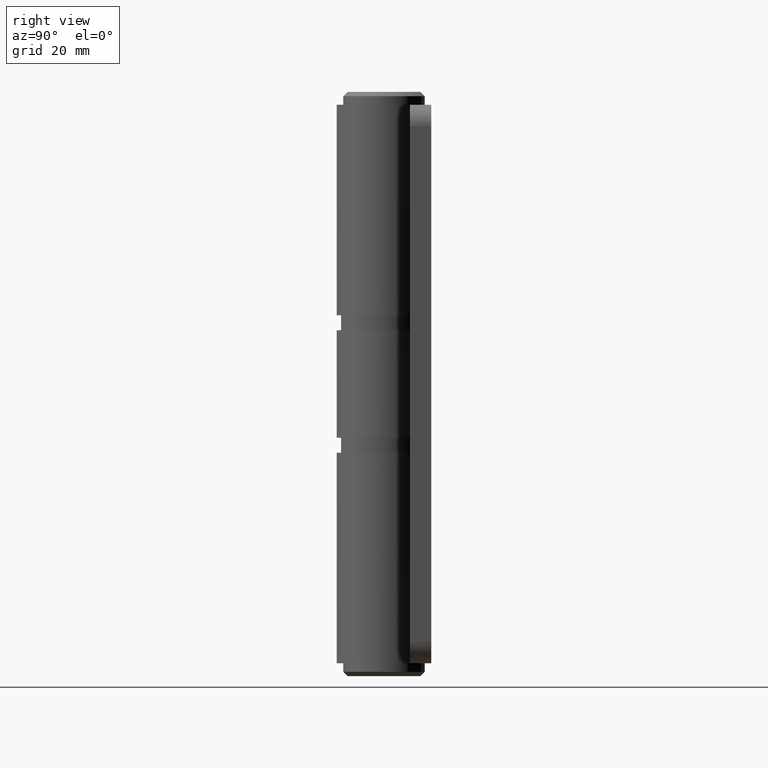
[diagram: clean part render]
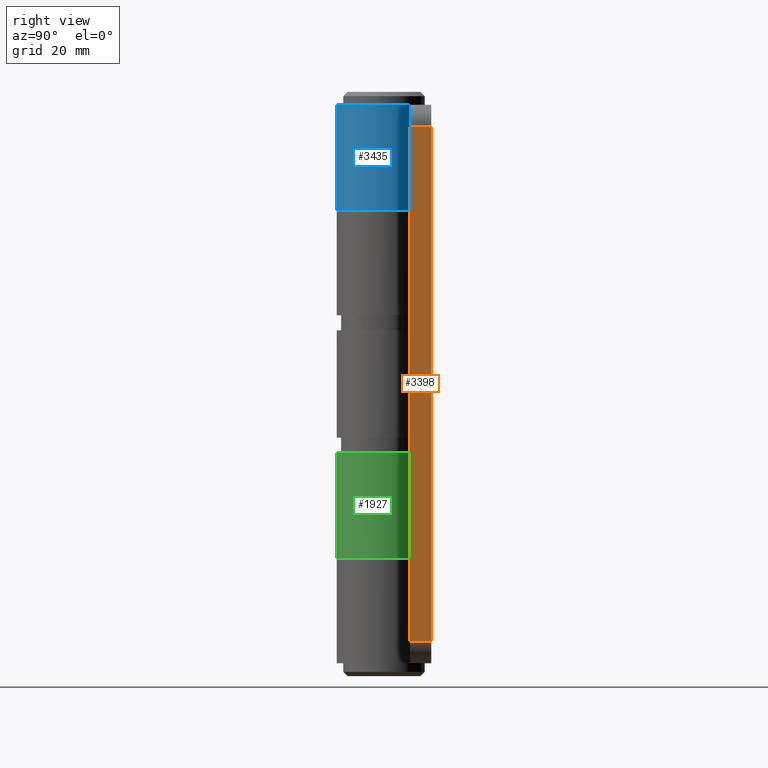
[diagram: same view with three faces highlighted in distinct colors, each labeled with its STEP entity id]
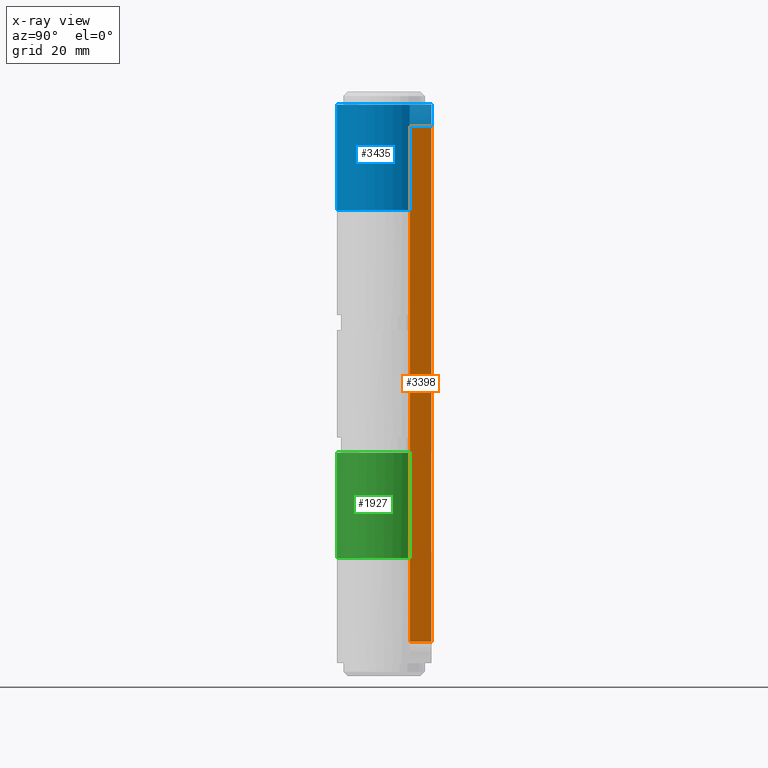
[diagram: x-ray of the same camera — body ghosted, the three highlighted faces saturated]
A machine part, right view with three faces highlighted in distinct colors.
The next image is the same camera in x-ray (body ghosted, the three faces saturated) — at least one of them is partly hidden behind the body in this view.
Their STEP definitions:

[orange] entity #3398 — the highlighted face is a freeform B-spline surface patch.
#3078=CARTESIAN_POINT('',(50.0,11.0,5.0));
#3079=VERTEX_POINT('',#3078);
#3095=CARTESIAN_POINT('',(50.0,6.0,5.0));
#3096=VERTEX_POINT('',#3095);
#3097=CARTESIAN_POINT('',(50.0,6.0,5.0));
#3098=CARTESIAN_POINT('',(50.0,11.0,5.0));
#3099=QUASI_UNIFORM_CURVE('',1,(#3097,#3098),.UNSPECIFIED.,.F.,.U.);
#3100=EDGE_CURVE('',#3096,#3079,#3099,.T.);
#3141=CARTESIAN_POINT('',(50.0,11.0,125.0));
#3142=VERTEX_POINT('',#3141);
#3163=CARTESIAN_POINT('',(50.0,6.0,125.0));
#3164=VERTEX_POINT('',#3163);
#3178=CARTESIAN_POINT('',(50.0,11.0,125.0));
#3179=CARTESIAN_POINT('',(50.0,6.0,125.0));
#3180=QUASI_UNIFORM_CURVE('',1,(#3178,#3179),.UNSPECIFIED.,.F.,.U.);
#3181=EDGE_CURVE('',#3142,#3164,#3180,.T.);
#3379=CARTESIAN_POINT('',(50.0,5.750250009690969,130.993999767416710));
#3380=CARTESIAN_POINT('',(50.0,5.750250009690969,-0.994002986067532));
#3381=CARTESIAN_POINT('',(50.0,11.249750124419480,130.993999767416710));
#3382=CARTESIAN_POINT('',(50.0,11.249750124419480,-0.994002986067532));
#3383=B_SPLINE_SURFACE_WITH_KNOTS('',1,1,((#3379,#3381),(#3380,#3382)),.UNSPECIFIED.,.F.,.F.,.U.,(2,2),(2,2),(0.0,131.988002753484300),(0.0,5.499500114728511),.UNSPECIFIED.);
#3384=CARTESIAN_POINT('',(50.0,6.0,125.0));
#3385=CARTESIAN_POINT('',(50.0,6.0,5.0));
#3386=QUASI_UNIFORM_CURVE('',1,(#3384,#3385),.UNSPECIFIED.,.F.,.U.);
#3387=EDGE_CURVE('',#3164,#3096,#3386,.T.);
#3388=ORIENTED_EDGE('',*,*,#3387,.T.);
#3389=ORIENTED_EDGE('',*,*,#3100,.T.);
#3390=CARTESIAN_POINT('',(50.0,11.0,125.0));
#3391=CARTESIAN_POINT('',(50.0,11.0,5.0));
#3392=QUASI_UNIFORM_CURVE('',1,(#3390,#3391),.UNSPECIFIED.,.F.,.U.);
#3393=EDGE_CURVE('',#3142,#3079,#3392,.T.);
#3394=ORIENTED_EDGE('',*,*,#3393,.F.);
#3395=ORIENTED_EDGE('',*,*,#3181,.T.);
#3396=EDGE_LOOP('',(#3388,#3389,#3394,#3395));
#3397=FACE_OUTER_BOUND('',#3396,.T.);
#3398=ADVANCED_FACE('',(#3397),#3383,.T.);

[blue] entity #3435 — the highlighted face is a freeform B-spline surface patch.
#2307=CARTESIAN_POINT('',(9.251891698458209,5.950000000000000,105.500000000000000));
#2308=VERTEX_POINT('',#2307);
#2314=CARTESIAN_POINT('',(0.0,11.0,105.500000000000000));
#2315=VERTEX_POINT('',#2314);
#2316=CARTESIAN_POINT('',(9.251891698458211,5.950000000000002,105.500000000000000));
#2317=CARTESIAN_POINT('',(13.874373314679708,-1.237680553175686,105.500000000000010));
#2318=CARTESIAN_POINT('',(8.052632441574287,-7.493671380632148,105.500000000000000));
#2319=CARTESIAN_POINT('',(2.230891568468870,-13.749662208088605,105.500000000000010));
#2320=CARTESIAN_POINT('',(-5.270199237220531,-9.655309420210214,105.500000000000000));
#2321=CARTESIAN_POINT('',(-12.771290042909945,-5.560956632331815,105.500000000000010));
#2322=CARTESIAN_POINT('',(-10.658527187710140,2.719521683834099,105.500000000000000));
#2323=CARTESIAN_POINT('',(-8.545764332510327,11.0,105.500000000000010));
#2324=CARTESIAN_POINT('',(0.0,11.0,105.500000000000000));
#2332=(BOUNDED_CURVE()B_SPLINE_CURVE(2,(#2316,#2317,#2318,#2319,#2320,#2321,#2322,#2323,#2324),.UNSPECIFIED.,.F.,.U.)B_SPLINE_CURVE_WITH_KNOTS((3,2,2,2,3),(0.0,0.250000000000000,0.500000000000000,0.750000000000000,1.0),.UNSPECIFIED.)CURVE()GEOMETRIC_REPRESENTATION_ITEM()RATIONAL_B_SPLINE_CURVE((1.0,0.789692738976660,1.0,0.789692738976660,1.0,0.789692738976660,1.0,0.789692738976660,1.0))REPRESENTATION_ITEM(''));
#2333=EDGE_CURVE('',#2308,#2315,#2332,.T.);
#3269=CARTESIAN_POINT('',(0.0,11.0,130.0));
#3270=VERTEX_POINT('',#3269);
#3276=CARTESIAN_POINT('',(9.251891698458209,5.950000000000000,130.0));
#3277=VERTEX_POINT('',#3276);
#3278=CARTESIAN_POINT('',(9.251891698458211,5.950000000000002,130.0));
#3279=CARTESIAN_POINT('',(13.874373314679708,-1.237680553175686,130.0));
#3280=CARTESIAN_POINT('',(8.052632441574287,-7.493671380632148,130.0));
#3281=CARTESIAN_POINT('',(2.230891568468870,-13.749662208088605,130.0));
#3282=CARTESIAN_POINT('',(-5.270199237220531,-9.655309420210214,130.0));
#3283=CARTESIAN_POINT('',(-12.771290042909945,-5.560956632331815,130.0));
#3284=CARTESIAN_POINT('',(-10.658527187710140,2.719521683834099,130.0));
#3285=CARTESIAN_POINT('',(-8.545764332510327,11.0,130.0));
#3286=CARTESIAN_POINT('',(0.0,11.0,130.0));
#3294=(BOUNDED_CURVE()B_SPLINE_CURVE(2,(#3278,#3279,#3280,#3281,#3282,#3283,#3284,#3285,#3286),.UNSPECIFIED.,.F.,.U.)B_SPLINE_CURVE_WITH_KNOTS((3,2,2,2,3),(0.0,0.250000000000000,0.500000000000000,0.750000000000000,1.0),.UNSPECIFIED.)CURVE()GEOMETRIC_REPRESENTATION_ITEM()RATIONAL_B_SPLINE_CURVE((1.0,0.789692738976660,1.0,0.789692738976660,1.0,0.789692738976660,1.0,0.789692738976660,1.0))REPRESENTATION_ITEM(''));
#3295=EDGE_CURVE('',#3277,#3270,#3294,.T.);
#3399=CARTESIAN_POINT('',(0.336778339058821,10.994843352696790,130.612500000000010));
#3400=CARTESIAN_POINT('',(0.336778339058821,10.994843352696790,104.872187500000000));
#3401=CARTESIAN_POINT('',(-13.485634154904789,11.418231751437471,130.612500000000010));
#3402=CARTESIAN_POINT('',(-13.485634154904789,11.418231751437471,104.872187499999980));
#3403=CARTESIAN_POINT('',(-10.788804872322141,-2.145154872487774,130.612500000000010));
#3404=CARTESIAN_POINT('',(-10.788804872322141,-2.145154872487774,104.872187500000000));
#3405=CARTESIAN_POINT('',(-8.091975589739485,-15.708541496413019,130.612500000000010));
#3406=CARTESIAN_POINT('',(-8.091975589739485,-15.708541496413019,104.872187499999980));
#3407=CARTESIAN_POINT('',(4.517127723219371,-10.029733652102779,130.612500000000010));
#3408=CARTESIAN_POINT('',(4.517127723219371,-10.029733652102779,104.872187500000000));
#3409=CARTESIAN_POINT('',(17.126231036178226,-4.350925807792535,130.612500000000010));
#3410=CARTESIAN_POINT('',(17.126231036178226,-4.350925807792535,104.872187499999980));
#3411=CARTESIAN_POINT('',(8.756539584433936,6.657553192145108,130.612500000000010));
#3412=CARTESIAN_POINT('',(8.756539584433936,6.657553192145108,104.872187500000000));
#3420=(BOUNDED_SURFACE()B_SPLINE_SURFACE(1,2,((#3399,#3401,#3403,#3405,#3407,#3409,#3411),(#3400,#3402,#3404,#3406,#3408,#3410,#3412)),.UNSPECIFIED.,.F.,.F.,.U.)B_SPLINE_SURFACE_WITH_KNOTS((2,2),(3,2,2,3),(0.0,25.740312500000030),(0.0,21.223080595973101,42.446161191946203,63.669241787919297),.UNSPECIFIED.)GEOMETRIC_REPRESENTATION_ITEM()RATIONAL_B_SPLINE_SURFACE(((1.0,0.622514636637620,1.0,0.622514636637620,1.0,0.622514636637620,1.0),(1.0,0.622514636637620,1.0,0.622514636637620,1.0,0.622514636637620,1.0)))REPRESENTATION_ITEM('')SURFACE());
#3421=CARTESIAN_POINT('',(0.0,11.0,130.0));
#3422=CARTESIAN_POINT('',(0.0,11.0,105.500000000000000));
#3423=QUASI_UNIFORM_CURVE('',1,(#3421,#3422),.UNSPECIFIED.,.F.,.U.);
#3424=EDGE_CURVE('',#3270,#2315,#3423,.T.);
#3425=ORIENTED_EDGE('',*,*,#3424,.T.);
#3426=ORIENTED_EDGE('',*,*,#2333,.F.);
#3427=CARTESIAN_POINT('',(9.251891698458209,5.950000000000000,130.0));
#3428=CARTESIAN_POINT('',(9.251891698458209,5.950000000000000,105.500000000000000));
#3429=QUASI_UNIFORM_CURVE('',1,(#3427,#3428),.UNSPECIFIED.,.F.,.U.);
#3430=EDGE_CURVE('',#3277,#2308,#3429,.T.);
#3431=ORIENTED_EDGE('',*,*,#3430,.F.);
#3432=ORIENTED_EDGE('',*,*,#3295,.T.);
#3433=EDGE_LOOP('',(#3425,#3426,#3431,#3432));
#3434=FACE_OUTER_BOUND('',#3433,.T.);
#3435=ADVANCED_FACE('',(#3434),#3420,.T.);

[green] entity #1927 — the highlighted face is a freeform B-spline surface patch.
#1682=CARTESIAN_POINT('',(-9.251891698458209,5.950000000000000,49.0));
#1683=VERTEX_POINT('',#1682);
#1689=CARTESIAN_POINT('',(0.0,11.0,49.0));
#1690=VERTEX_POINT('',#1689);
#1691=CARTESIAN_POINT('',(0.0,11.0,49.0));
#1692=CARTESIAN_POINT('',(8.545764332510323,11.0,49.000000000000007));
#1693=CARTESIAN_POINT('',(10.658527187710140,2.719521683834106,49.0));
#1694=CARTESIAN_POINT('',(12.771290042909955,-5.560956632331798,49.000000000000007));
#1695=CARTESIAN_POINT('',(5.270199237220546,-9.655309420210207,49.0));
#1696=CARTESIAN_POINT('',(-2.230891568468854,-13.749662208088614,49.000000000000007));
#1697=CARTESIAN_POINT('',(-8.052632441574282,-7.493671380632152,49.0));
#1698=CARTESIAN_POINT('',(-13.874373314679705,-1.237680553175694,49.000000000000007));
#1699=CARTESIAN_POINT('',(-9.251891698458215,5.949999999999996,49.0));
#1707=(BOUNDED_CURVE()B_SPLINE_CURVE(2,(#1691,#1692,#1693,#1694,#1695,#1696,#1697,#1698,#1699),.UNSPECIFIED.,.F.,.U.)B_SPLINE_CURVE_WITH_KNOTS((3,2,2,2,3),(0.0,0.250000000000000,0.500000000000000,0.750000000000000,1.0),.UNSPECIFIED.)CURVE()GEOMETRIC_REPRESENTATION_ITEM()RATIONAL_B_SPLINE_CURVE((1.0,0.789692738976660,1.0,0.789692738976660,1.0,0.789692738976660,1.0,0.789692738976660,1.0))REPRESENTATION_ITEM(''));
#1708=EDGE_CURVE('',#1690,#1683,#1707,.T.);
#1794=CARTESIAN_POINT('',(0.0,11.0,24.500000000000000));
#1795=VERTEX_POINT('',#1794);
#1801=CARTESIAN_POINT('',(-9.251891698458209,5.950000000000000,24.500000000000000));
#1802=VERTEX_POINT('',#1801);
#1803=CARTESIAN_POINT('',(-9.251891698458211,5.950000000000002,24.500000000000000));
#1804=CARTESIAN_POINT('',(-13.874373314679708,-1.237680553175686,24.500000000000000));
#1805=CARTESIAN_POINT('',(-8.052632441574287,-7.493671380632148,24.500000000000000));
#1806=CARTESIAN_POINT('',(-2.230891568468870,-13.749662208088605,24.500000000000000));
#1807=CARTESIAN_POINT('',(5.270199237220531,-9.655309420210214,24.500000000000000));
#1808=CARTESIAN_POINT('',(12.771290042909945,-5.560956632331815,24.500000000000000));
#1809=CARTESIAN_POINT('',(10.658527187710140,2.719521683834099,24.500000000000000));
#1810=CARTESIAN_POINT('',(8.545764332510327,11.0,24.500000000000000));
#1811=CARTESIAN_POINT('',(0.0,11.0,24.500000000000000));
#1819=(BOUNDED_CURVE()B_SPLINE_CURVE(2,(#1803,#1804,#1805,#1806,#1807,#1808,#1809,#1810,#1811),.UNSPECIFIED.,.F.,.U.)B_SPLINE_CURVE_WITH_KNOTS((3,2,2,2,3),(0.0,0.250000000000000,0.500000000000000,0.750000000000000,1.0),.UNSPECIFIED.)CURVE()GEOMETRIC_REPRESENTATION_ITEM()RATIONAL_B_SPLINE_CURVE((1.0,0.789692738976660,1.0,0.789692738976660,1.0,0.789692738976660,1.0,0.789692738976660,1.0))REPRESENTATION_ITEM(''));
#1820=EDGE_CURVE('',#1802,#1795,#1819,.T.);
#1891=CARTESIAN_POINT('',(-9.065388074842170,6.230468606173159,49.612500000000011));
#1892=CARTESIAN_POINT('',(-9.065388074842170,6.230468606173159,23.872187499999999));
#1893=CARTESIAN_POINT('',(-16.898160615807260,-5.166286160468651,49.612500000000004));
#1894=CARTESIAN_POINT('',(-16.898160615807260,-5.166286160468651,23.872187499999995));
#1895=CARTESIAN_POINT('',(-4.031513493967266,-10.234593247802270,49.612500000000011));
#1896=CARTESIAN_POINT('',(-4.031513493967266,-10.234593247802270,23.872187499999999));
#1897=CARTESIAN_POINT('',(8.835133627872729,-15.302900335135888,49.612500000000004));
#1898=CARTESIAN_POINT('',(8.835133627872729,-15.302900335135888,23.872187499999995));
#1899=CARTESIAN_POINT('',(10.879174496981090,-1.625903522425709,49.612500000000011));
#1900=CARTESIAN_POINT('',(10.879174496981090,-1.625903522425709,23.872187499999999));
#1901=CARTESIAN_POINT('',(12.923215366089437,12.051093290284467,49.612500000000004));
#1902=CARTESIAN_POINT('',(12.923215366089437,12.051093290284467,23.872187499999995));
#1903=CARTESIAN_POINT('',(-0.863050053006306,10.966090671064411,49.612500000000011));
#1904=CARTESIAN_POINT('',(-0.863050053006306,10.966090671064411,23.872187499999999));
#1912=(BOUNDED_SURFACE()B_SPLINE_SURFACE(1,2,((#1891,#1893,#1895,#1897,#1899,#1901,#1903),(#1892,#1894,#1896,#1898,#1900,#1902,#1904)),.UNSPECIFIED.,.F.,.F.,.U.)B_SPLINE_SURFACE_WITH_KNOTS((2,2),(3,2,2,3),(0.0,25.740312500000019),(0.0,21.223080595973101,42.446161191946203,63.669241787919297),.UNSPECIFIED.)GEOMETRIC_REPRESENTATION_ITEM()RATIONAL_B_SPLINE_SURFACE(((1.0,0.622514636637620,1.0,0.622514636637620,1.0,0.622514636637620,1.0),(1.0,0.622514636637620,1.0,0.622514636637620,1.0,0.622514636637620,1.0)))REPRESENTATION_ITEM('')SURFACE());
#1913=ORIENTED_EDGE('',*,*,#1708,.T.);
#1914=CARTESIAN_POINT('',(-9.251891698458209,5.950000000000000,49.0));
#1915=CARTESIAN_POINT('',(-9.251891698458209,5.950000000000000,24.500000000000000));
#1916=QUASI_UNIFORM_CURVE('',1,(#1914,#1915),.UNSPECIFIED.,.F.,.U.);
#1917=EDGE_CURVE('',#1683,#1802,#1916,.T.);
#1918=ORIENTED_EDGE('',*,*,#1917,.T.);
#1919=ORIENTED_EDGE('',*,*,#1820,.T.);
#1920=CARTESIAN_POINT('',(0.0,11.0,49.0));
#1921=CARTESIAN_POINT('',(0.0,11.0,24.500000000000000));
#1922=QUASI_UNIFORM_CURVE('',1,(#1920,#1921),.UNSPECIFIED.,.F.,.U.);
#1923=EDGE_CURVE('',#1690,#1795,#1922,.T.);
#1924=ORIENTED_EDGE('',*,*,#1923,.F.);
#1925=EDGE_LOOP('',(#1913,#1918,#1919,#1924));
#1926=FACE_OUTER_BOUND('',#1925,.T.);
#1927=ADVANCED_FACE('',(#1926),#1912,.T.);